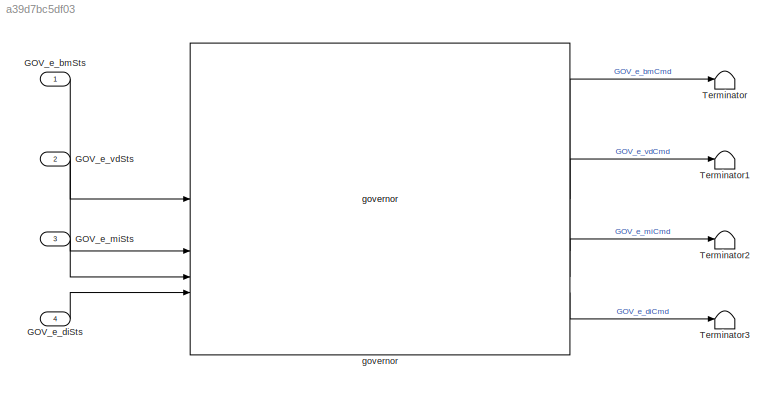
MODEL slx_a39d7bc5df03
KIND model
CONFIG AbsTol = auto
CONFIG EnableMultiTasking = off
CONFIG FixedStep = 1e-3
CONFIG MaxStep = auto
CONFIG MinStep = auto
CONFIG RelTol = 1e-3
CONFIG SampleTimeConstraint = Unconstrained
CONFIG SolverName = FixedStepAuto
CONFIG StartTime = 0.0
CONFIG StopTime = 10.0
BLOCK [Inport] GOV_e_bmSts
  Interpolate = off
  OutDataTypeStr = Enum: BM_STATUSES
BLOCK [Inport] GOV_e_diSts
  Interpolate = off
  OutDataTypeStr = Enum: DI_STATUSES
  Port = 4
BLOCK [Inport] GOV_e_miSts
  Interpolate = off
  OutDataTypeStr = Enum: MI_STATUSES
  Port = 3
BLOCK [Inport] GOV_e_vdSts
  OutDataTypeStr = uint8
  Port = 2
BLOCK [Terminator] Terminator
BLOCK [Terminator] Terminator1
BLOCK [Terminator] Terminator2
BLOCK [Terminator] Terminator3
BLOCK [Reference] governor  REF=governor_lib/governor  (lib defined in slx_791b6fe89bfd)
  SourceBlock = governor_lib/governor
  SourceType = SubSystem
LINE GOV_e_bmSts:1 -> governor:1
LINE GOV_e_diSts:1 -> governor:4
LINE GOV_e_miSts:1 -> governor:3
LINE GOV_e_vdSts:1 -> governor:2
LINE governor:1 -> Terminator:1
LINE governor:2 -> Terminator1:1
LINE governor:3 -> Terminator2:1
LINE governor:4 -> Terminator3:1
